MODEL slx_64add5cd34ae
KIND model
BLOCK [Constant] BWShare
  Value = 0.3
BLOCK [Clock] Clock
BLOCK [TransportDelay] Computational Delay
  DelayTime = 0.002
  Ports = [1, 1]
BLOCK [Constant] Constant
BLOCK [TransferFcn] DC Servo
  Denominator = [1 1 0]
  Numerator = [1000]
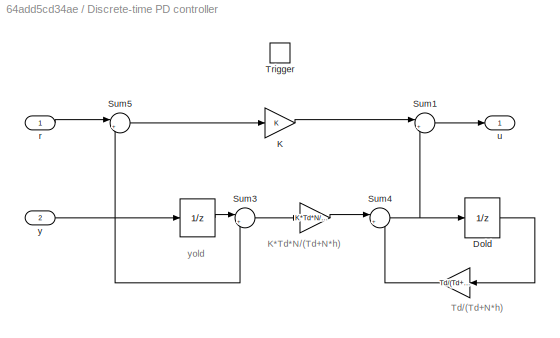
BLOCK [SubSystem] Discrete-time PD controller
  FunctionWithSeparateData = off
  MaskCallbackString = |||
  MaskEnableString = on,on,on,on
  MaskHideContents = off
  MaskIconFrame = on
  MaskIconOpaque = on
  MaskIconRotate = none
  MaskIconUnits = autoscale
  MaskPortRotate = default
  MaskPromptString = K|Td|N|h
  MaskStyleString = edit,edit,edit,edit
  MaskToolTipString = on,on,on,on
  MaskTunableValueString = on,on,on,on
  MaskValueString = 1.0|0.04|100|0.010
  MaskVariables = K=@1;Td=@2;N=@3;h=@4;
  MaskVisibilityString = on,on,on,on
  MinAlgLoopOccurrences = off
  Opaque = off
  Ports = [2, 1, 0, 1]
  PropExecContextOutsideSubsystem = off
  RTWSystemCode = Auto
  RequestExecContextInheritance = off
  TreatAsAtomicUnit = on
BLOCK [UnitDelay] Discrete-time PD controller/ 
  SampleTime = -1
BLOCK [Gain] Discrete-time PD controller/             
  Gain = K*Td*N/(Td+N*h)
BLOCK [Gain] Discrete-time PD controller/              
  Gain = Td/(Td+N*h)
BLOCK [UnitDelay] Discrete-time PD controller/Dold
  SampleTime = -1
BLOCK [Gain] Discrete-time PD controller/K
  Gain = K
BLOCK [Sum] Discrete-time PD controller/Sum1
  IconShape = round
  Inputs = |++
  Ports = [2, 1]
BLOCK [Sum] Discrete-time PD controller/Sum3
  IconShape = round
  Inputs = |+-
  Ports = [2, 1]
BLOCK [Sum] Discrete-time PD controller/Sum4
  IconShape = round
  Inputs = |++
  Ports = [2, 1]
BLOCK [Sum] Discrete-time PD controller/Sum5
  IconShape = round
  Inputs = |+-
  Ports = [2, 1]
BLOCK [TriggerPort] Discrete-time PD controller/Trigger
  Ports = []
  TriggerType = either
BLOCK [Inport] Discrete-time PD controller/r
  IconDisplay = Port number
BLOCK [Outport] Discrete-time PD controller/u
  IconDisplay = Port number
BLOCK [Inport] Discrete-time PD controller/y
  IconDisplay = Port number
  Port = 2
BLOCK [Display] Display
  Decimation = 1
  Lockdown = off
  Ports = [1]
BLOCK [From] From
  CloseFcn = tagdialog Close
  GotoTag = r
  TagVisibility = global
BLOCK [From] From1
  CloseFcn = tagdialog Close
  GotoTag = y
  TagVisibility = global
BLOCK [From] From2
  CloseFcn = tagdialog Close
  GotoTag = u
  TagVisibility = global
BLOCK [Goto] Goto
  GotoTag = r
  TagVisibility = global
BLOCK [Goto] Goto1
  GotoTag = y
  TagVisibility = global
BLOCK [Goto] Goto2
  GotoTag = u
  TagVisibility = global
BLOCK [DiscretePulseGenerator] Interference Trigger
  Period = 0.001
  PhaseDelay = 0.006
  Ports = [0, 1]
  PulseType = Time based
  PulseWidth = 50
BLOCK [Logic] Logical Operator
  Ports = [2, 1]
BLOCK [Mux] Mux1
  DisplayOption = bar
  Inputs = 2
  Ports = [2, 1]
BLOCK [Scope] Network Schedule
  DataFormat = StructureWithTime
  Floating = off
  LimitDataPoints = off
  NumInputPorts = 1
  Ports = [1]
  SaveName = nschedule1
  ShowLegends = off
  TimeRange = 2
  YMax = 3.5
  YMin = 1
  ZoomMode = xonly
BLOCK [SignalGenerator] Reference
  Ports = [0, 1]
  WaveForm = square
BLOCK [RelationalOperator] Relational Operator
  Operator = <
  Ports = [2, 1]
BLOCK [DiscretePulseGenerator] Sensor Trigger
  Period = 0.010
  PhaseDelay = 0.006
  Ports = [0, 1]
  PulseType = Time based
  PulseWidth = 50
BLOCK [Terminator] Terminator
BLOCK [Reference] TrueTime Network  REF=truetime/TrueTime Network  (lib defined in slx_0362a698a4ec)
  NIT = 0
  Ports = [0, 1]
  QSortMode = FIFO
  SourceBlock = truetime/TrueTime Network
  SourceType = Real-Time Network
  bandwidths = [0.5 0.25 0.25]
  buftype = Common buffer
  dynSchedule = 0
  irtSchedule = 0
  lossprob = 0
  memsize = 80000
  miniSlotSize = 0
  minsize = 80
  nnodes = 3
  nodeGraph = 0
  nrtLength = 0
  nwnbr = 1
  nwtype = CSMA/AMP (CAN)
  overflow = Retransmit
  rate = 80000
  schedule = [1 2 1 3]
  scheduleoutput = on
  seed = 123
  slotsize = 80
  sync = 0
BLOCK [Reference] TrueTime Receive (Actuator)  REF=truetime/TrueTime Receive  (lib defined in slx_0362a698a4ec)
  Ports = [0, 1]
  SourceBlock = truetime/TrueTime Receive
  lengthoutput = off
  msgIDoutput = off
  nwnbr = 1
  outdim = 1
  priorityoutput = off
  receiver = 2
  senderoutput = off
  signalpoweroutput = off
  timestampoutput = off
  triggeroutput = off
BLOCK [Reference] TrueTime Receive (Controller)  REF=truetime/TrueTime Receive  (lib defined in slx_0362a698a4ec)
  Ports = [0, 2]
  SourceBlock = truetime/TrueTime Receive
  lengthoutput = off
  msgIDoutput = off
  nwnbr = 1
  outdim = 1
  priorityoutput = off
  receiver = 3
  senderoutput = off
  signalpoweroutput = off
  timestampoutput = off
  triggeroutput = on
BLOCK [Reference] TrueTime Receive (Interference)  REF=truetime/TrueTime Receive  (lib defined in slx_0362a698a4ec)
  Ports = [0, 1]
  SourceBlock = truetime/TrueTime Receive
  lengthoutput = off
  msgIDoutput = off
  nwnbr = 1
  outdim = 1
  priorityoutput = off
  receiver = 1
  senderoutput = off
  signalpoweroutput = off
  timestampoutput = off
  triggeroutput = off
BLOCK [Reference] TrueTime Send  REF=truetime/TrueTime Send  (lib defined in slx_0362a698a4ec)
  Ports = [2]
  SourceBlock = truetime/TrueTime Send
  dynamicSegment = dynamic
  indim = 1
  length = 80
  lengthsource = internal
  msgID = 0
  msgIDsource = internal
  nwnbr = 1
  prio = 3
  priosource = internal
  receiver = 2
  recsource = internal
  sender = 3
  trigger = either
BLOCK [Reference] TrueTime Send (Interference)  REF=truetime/TrueTime Send  (lib defined in slx_0362a698a4ec)
  Ports = [2]
  SourceBlock = truetime/TrueTime Send
  dynamicSegment = dynamic
  indim = 1
  length = 80
  lengthsource = internal
  msgID = 0
  msgIDsource = internal
  nwnbr = 1
  prio = 1
  priosource = internal
  receiver = 1
  recsource = internal
  sender = 1
  trigger = rising
BLOCK [Reference] TrueTime Send (Sensor)  REF=truetime/TrueTime Send  (lib defined in slx_0362a698a4ec)
  Ports = [2]
  SourceBlock = truetime/TrueTime Send
  dynamicSegment = dynamic
  indim = 1
  length = 80
  lengthsource = internal
  msgID = 0
  msgIDsource = internal
  nwnbr = 1
  prio = 2
  priosource = internal
  receiver = 3
  recsource = internal
  sender = 2
  trigger = rising
BLOCK [UniformRandomNumber] Uniform Random Number
  Minimum = 0
  SampleTime = 0.001
BLOCK [Scope] r, y; u
  DataFormat = StructureWithTime
  Floating = off
  LimitDataPoints = off
  NumInputPorts = 2
  Ports = [2]
  SaveName = y
  ShowLegends = off
  TimeRange = 2
  YMax = 2~3
  YMin = -2~-3
ANNOTATION (root): TrueTime 2.0 Standalone Networked Control System <copyright redacted>
ANNOTATION Discrete-time PD controller: K*Td*N/(Td+N*h)
ANNOTATION Discrete-time PD controller: Td/(Td+N*h)
ANNOTATION Discrete-time PD controller: yold
LINE BWShare:1 -> Relational Operator:2
LINE Clock:1 -> Display:1
LINE Computational Delay:1 -> TrueTime Send:2
LINE Constant:1 -> TrueTime Send (Interference):1
NET DC Servo:1 -> Goto1:1, TrueTime Send (Sensor):1
LINE Discrete-time PD controller/              :1 -> Discrete-time PD controller/Sum4:2
LINE Discrete-time PD controller/             :1 -> Discrete-time PD controller/Sum4:1
LINE Discrete-time PD controller/ :1 -> Discrete-time PD controller/Sum3:1
LINE Discrete-time PD controller/Dold:1 -> Discrete-time PD controller/              :1
LINE Discrete-time PD controller/K:1 -> Discrete-time PD controller/Sum1:1
LINE Discrete-time PD controller/Sum1:1 -> Discrete-time PD controller/u:1
LINE Discrete-time PD controller/Sum3:1 -> Discrete-time PD controller/             :1
NET Discrete-time PD controller/Sum4:1 -> Discrete-time PD controller/Dold:1, Discrete-time PD controller/Sum1:2
LINE Discrete-time PD controller/Sum5:1 -> Discrete-time PD controller/K:1
LINE Discrete-time PD controller/r:1 -> Discrete-time PD controller/Sum5:1
NET Discrete-time PD controller/y:1 -> Discrete-time PD controller/ :1, Discrete-time PD controller/Sum3:2, Discrete-time PD controller/Sum5:2
LINE Discrete-time PD controller:1 -> TrueTime Send:1
LINE From1:1 -> Mux1:1
LINE From2:1 -> r, y; u:2
LINE From:1 -> Mux1:2
LINE Interference Trigger:1 -> Logical Operator:2
LINE Logical Operator:1 -> TrueTime Send (Interference):2
LINE Mux1:1 -> r, y; u:1
NET Reference:1 -> Discrete-time PD controller:1, Goto:1
LINE Relational Operator:1 -> Logical Operator:1
LINE Sensor Trigger:1 -> TrueTime Send (Sensor):2
LINE TrueTime Network:1 -> Network Schedule:1
NET TrueTime Receive (Actuator):1 -> DC Servo:1, Goto2:1
LINE TrueTime Receive (Controller):1 -> Discrete-time PD controller:2
NET TrueTime Receive (Controller):2 -> Computational Delay:1, Discrete-time PD controller:trigger
LINE TrueTime Receive (Interference):1 -> Terminator:1
LINE Uniform Random Number:1 -> Relational Operator:1
note: NET lines group one-source signal fan-out (src -> all destinations, sorted); 1:1 wires keep LINE
